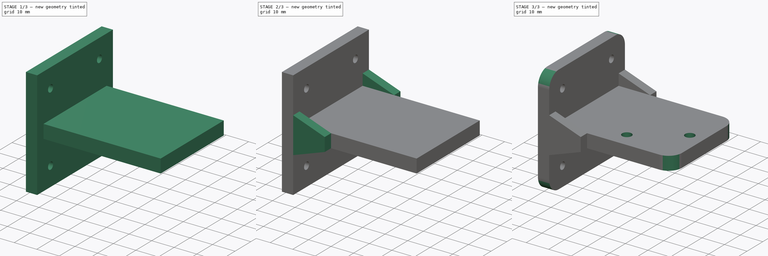
[diagram: build sequence overview — one tinted view per stage of 3, left to right]
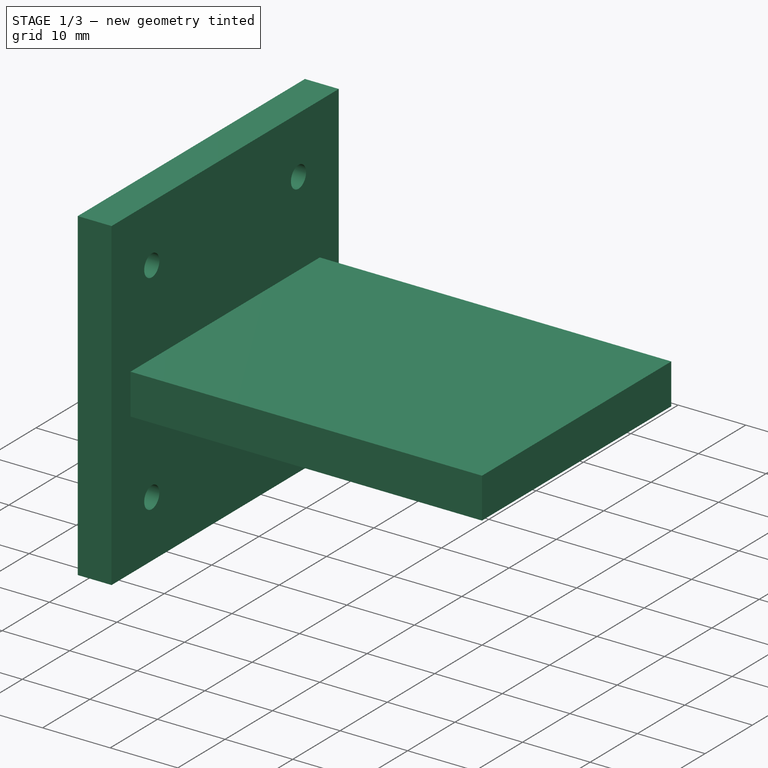
[diagram: stage 1 of 3 — iso view after this stage's code; geometry added in this stage tinted green]
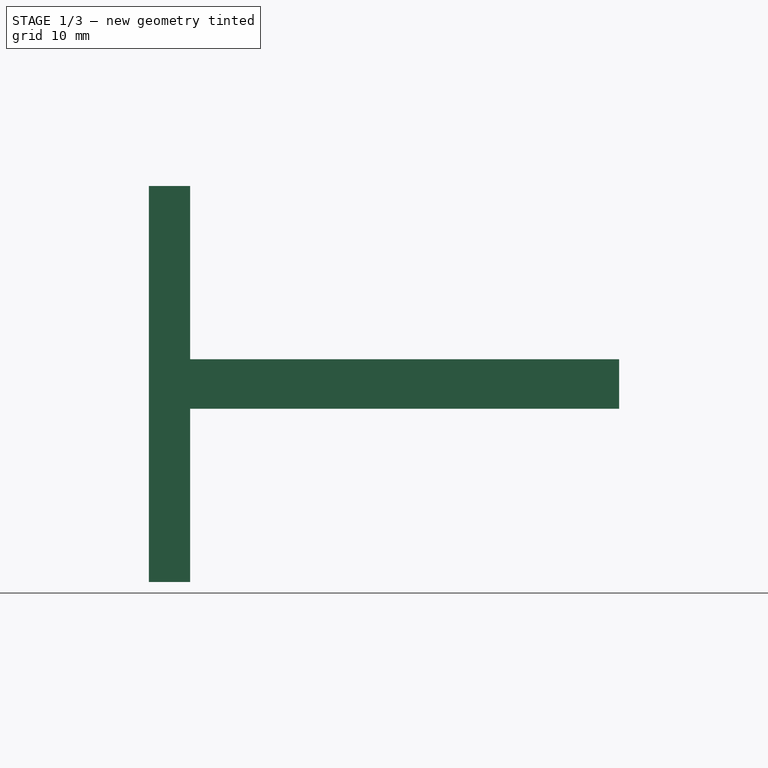
[diagram: stage 1 of 3 — front view after this stage's code; geometry added in this stage tinted green]
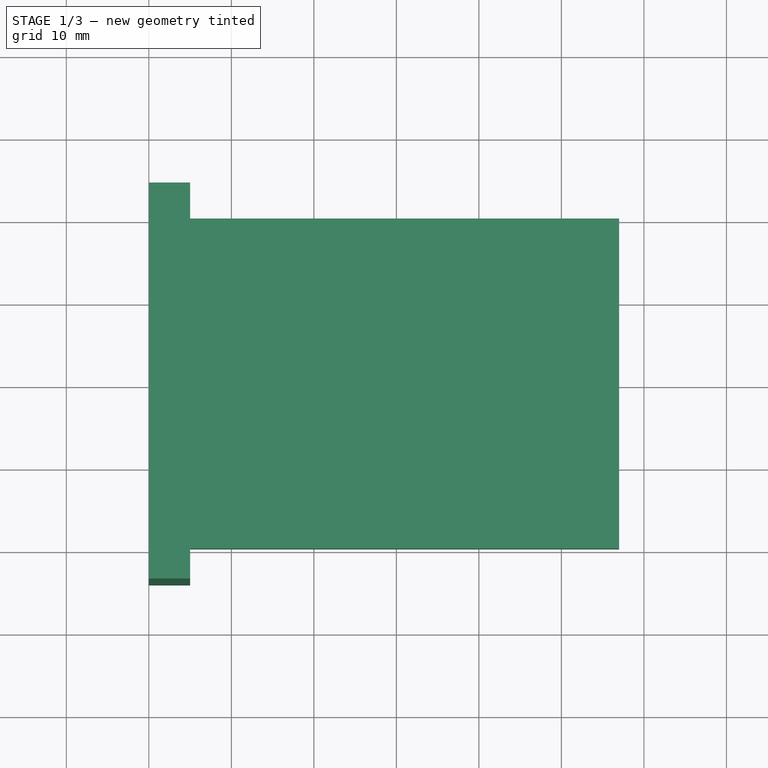
[diagram: stage 1 of 3 — top view after this stage's code; geometry added in this stage tinted green]
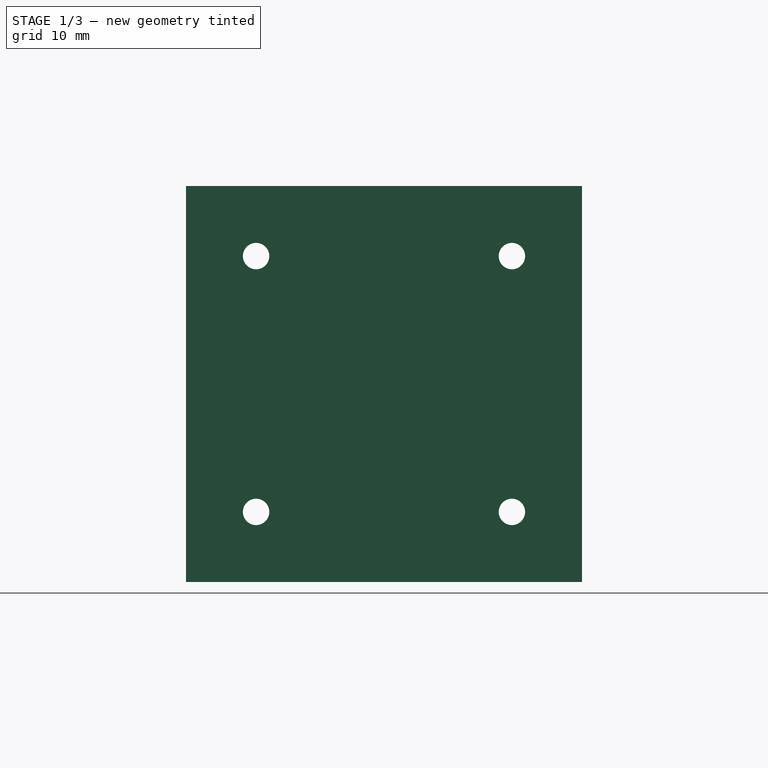
[diagram: stage 1 of 3 — right view after this stage's code; geometry added in this stage tinted green]
FCSTD DOCUMENT  (FreeCAD 0.20R29177 (Git))
Label: PCB_holder
License: All rights reserved
LicenseURL: http://en.wikipedia.org/wiki/All_rights_reserved
objects: Sketcher::SketchObject×5, PartDesign::Pad×4, PartDesign::Plane×2, PartDesign::Pocket×1, PartDesign::Fillet×1, PartDesign::Body×1
note: 20 computed .brp shape members not serialized (recipe doc carries the construction recipe); baked Part::Feature solids carry a one-line shape summary decoded from their .brp

FEATURE [Sketcher::SketchObject] Sketch
  FullyConstrained = true
  MapMode = 5
  Placement = pos=(0,0,0) rot=(0.57735,0.57735,0.57735;2.0944rad)
  Support = -> [YZ_Plane]
  sketch-geometry (8):
    g0: LineSegment StartX=-24 StartY=24 StartZ=0 EndX=24 EndY=24 EndZ=0
    g1: LineSegment StartX=24 StartY=24 StartZ=0 EndX=24 EndY=-24 EndZ=0
    g2: LineSegment StartX=24 StartY=-24 StartZ=0 EndX=-24 EndY=-24 EndZ=0
    g3: LineSegment StartX=-24 StartY=-24 StartZ=0 EndX=-24 EndY=24 EndZ=0
    g4: Circle CenterX=-15.5 CenterY=15.5 CenterZ=0 NormalX=0 NormalY=0 NormalZ=1 AngleXU=0 Radius=1.6
    g5: Circle CenterX=-15.5 CenterY=-15.5 CenterZ=0 NormalX=0 NormalY=0 NormalZ=1 AngleXU=0 Radius=1.6
    g6: Circle CenterX=15.5 CenterY=-15.5 CenterZ=0 NormalX=0 NormalY=0 NormalZ=1 AngleXU=0 Radius=1.6
    g7: Circle CenterX=15.5 CenterY=15.5 CenterZ=0 NormalX=0 NormalY=0 NormalZ=1 AngleXU=0 Radius=1.6
  constraints (24):
    c: Coincident(g0,g1)
    c: Coincident(g1,g2)
    c: Coincident(g2,g3)
    c: Coincident(g3,g0)
    c: Horizontal(g0)
    c: Horizontal(g2)
    c: Vertical(g1)
    c: Vertical(g3)
    c: DistanceY(g1,g1) = 48
    c: DistanceX(g2,g2) = 48
    c: Distance(g0,g-2) = 24
    c: Distance(g2,g-1) = 24
    c: Distance(g7,g-2) = 15.5
    c: Distance(g4,g-2) = 15.5
    c: Distance(g4,g-1) = 15.5
    c: Distance(g7,g-1) = 15.5
    c: Distance(g6,g-1) = 15.5
    c: Distance(g6,g-2) = 15.5
    c: Distance(g5,g-1) = 15.5
    c: Distance(g5,g-2) = 15.5
    c: Diameter(g4) = 3.2
    c: Diameter(g7) = 3.2
    c: Diameter(g6) = 3.2
    c: Diameter(g5) = 3.2
FEATURE [PartDesign::Pad] Pad
  Direction = (1,-2e-16,3e-16)
  Length = 5
  Length2 = 10
  Placement = pos=(0,0,0) rot=(0.57735,0.57735,0.57735;2.0944rad)
  Profile = -> Sketch
  ReferenceAxis = -> Sketch [N_Axis]
  Type = 0
FEATURE [Sketcher::SketchObject] Sketch001
  FullyConstrained = false
  MapMode = 5
  Placement = pos=(5,-2.2e-15,1.7e-15) rot=(0.57735,0.57735,0.57735;2.0944rad)
  Support = -> [Pad]
  sketch-geometry (4):
    g0: LineSegment StartX=-20 StartY=3 StartZ=0 EndX=20 EndY=3 EndZ=0
    g1: LineSegment StartX=20 StartY=3 StartZ=0 EndX=20 EndY=-3 EndZ=0
    g2: LineSegment StartX=20 StartY=-3 StartZ=0 EndX=-20 EndY=-3 EndZ=0
    g3: LineSegment StartX=-20 StartY=-3 StartZ=0 EndX=-20 EndY=3 EndZ=0
  constraints (8):
    c: Coincident(g0,g1)
    c: Coincident(g1,g2)
    c: Coincident(g2,g3)
    c: Coincident(g3,g0)
    c: Horizontal(g0)
    c: Horizontal(g2)
    c: Vertical(g1)
    c: Vertical(g3)
FEATURE [PartDesign::Pad] Pad001
  BaseFeature = -> Pad
  Direction = (1,-4e-16,4e-16)
  Length = 52
  Length2 = 10
  Placement = pos=(0,0,0) rot=(0.57735,0.57735,0.57735;2.0944rad)
  Profile = -> Sketch001
  ReferenceAxis = -> Sketch001 [N_Axis]
  Type = 0
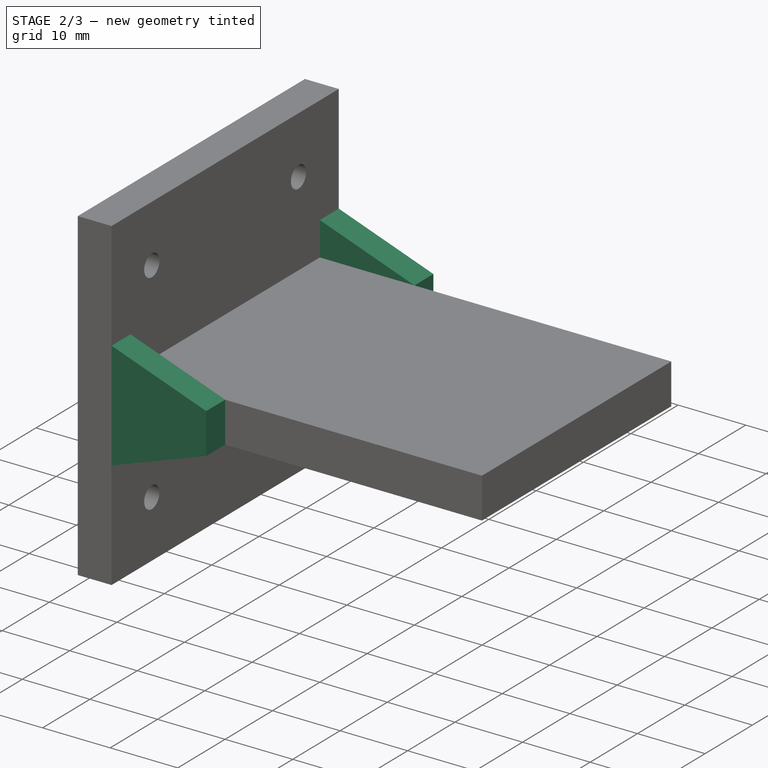
[diagram: stage 2 of 3 — iso view after this stage's code; geometry added in this stage tinted green]
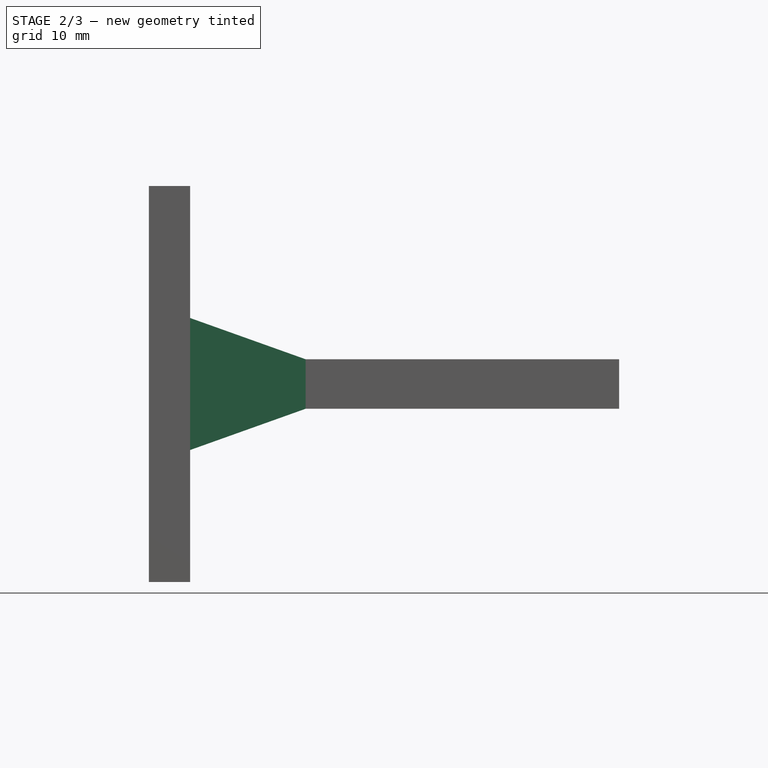
[diagram: stage 2 of 3 — front view after this stage's code; geometry added in this stage tinted green]
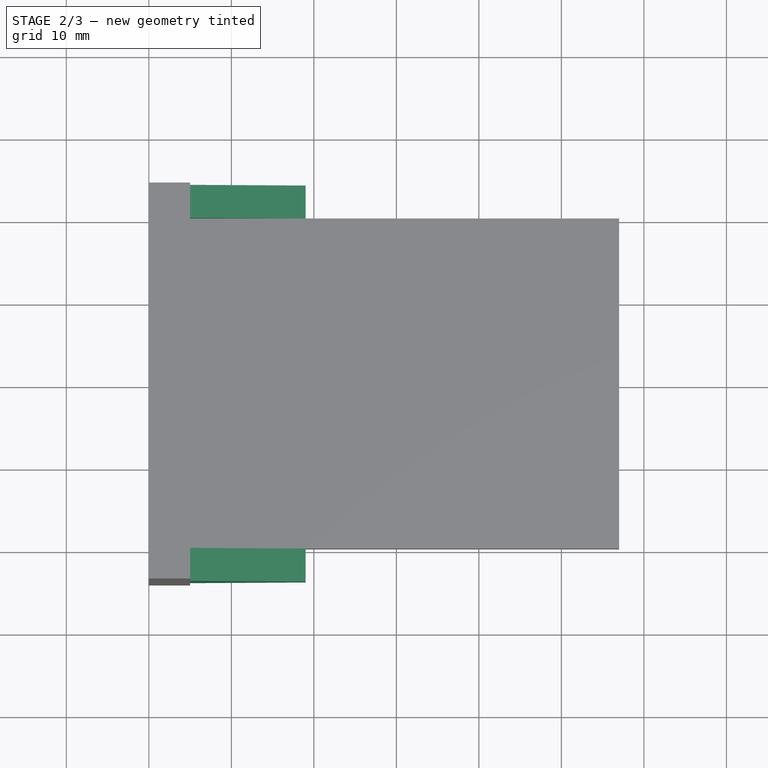
[diagram: stage 2 of 3 — top view after this stage's code; geometry added in this stage tinted green]
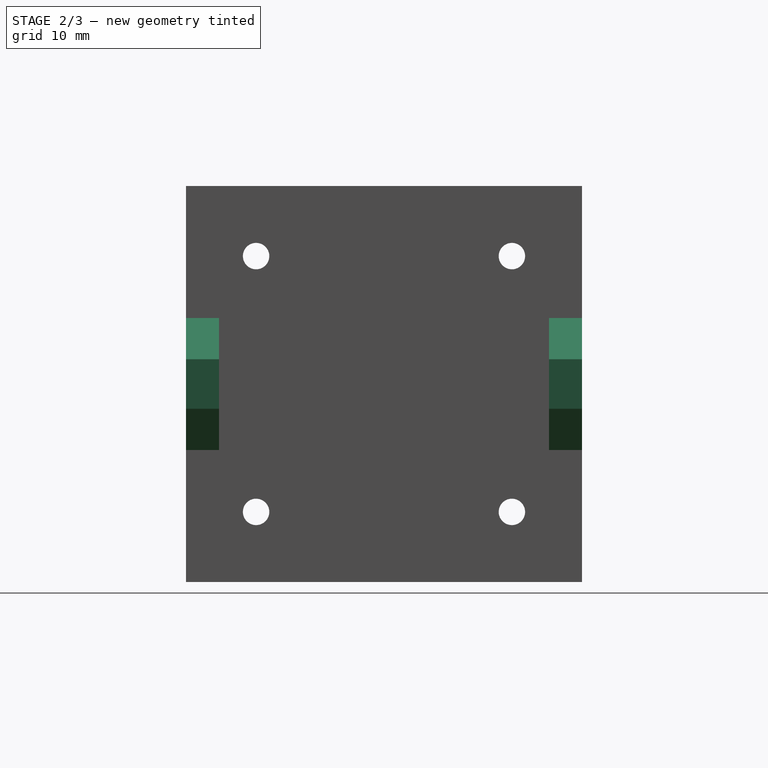
[diagram: stage 2 of 3 — right view after this stage's code; geometry added in this stage tinted green]
FEATURE [PartDesign::Plane] DatumPlane
  Length = 62.8062
  MapMode = 5
  Placement = pos=(-1.07e-14,-24,1.6e-14) rot=(0.57735,0.57735,-0.57735;2.0944rad)
  ResizeMode = 0
  Support = -> [Pad001]
  Width = 94.8062
FEATURE [Sketcher::SketchObject] Sketch002
  FullyConstrained = false
  MapMode = 5
  Placement = pos=(-1.07e-14,-24,1.6e-14) rot=(-0.57735,-0.57735,0.57735;4.18879rad)
  Support = -> [DatumPlane]
  sketch-geometry (4):
    g0: LineSegment StartX=-8 StartY=5 StartZ=0 EndX=8 EndY=5 EndZ=0
    g1: LineSegment StartX=-3 StartY=19 StartZ=0 EndX=3 EndY=19 EndZ=0
    g2: LineSegment StartX=-8 StartY=5 StartZ=0 EndX=-3 EndY=19 EndZ=0
    g3: LineSegment StartX=8 StartY=5 StartZ=0 EndX=3 EndY=19 EndZ=0
  constraints (9):
    c: Horizontal(g0)
    c: Horizontal(g1)
    c: Coincident(g2,g0)
    c: Coincident(g2,g1)
    c: Coincident(g3,g0)
    c: Coincident(g3,g1)
    c: DistanceX(g0,g0) = 16
    c: DistanceX(g1,g1) = 6
    c: Distance(g1,g-1) = 19
FEATURE [PartDesign::Pad] Pad002
  BaseFeature = -> Pad001
  Direction = (-9e-16,-1,4e-16)
  Length = 4
  Length2 = 10
  Placement = pos=(0,0,0) rot=(0.57735,0.57735,0.57735;2.0944rad)
  Profile = -> Sketch002
  ReferenceAxis = -> Sketch002 [N_Axis]
  Reversed = true
  Type = 0
FEATURE [PartDesign::Plane] DatumPlane001
  Length = 62.8062
  MapMode = 5
  Placement = pos=(1.07e-14,24,-2.4e-14) rot=(0.57735,0.57735,0.57735;4.18879rad)
  ResizeMode = 0
  Support = -> [Pad002]
  Width = 94.8062
FEATURE [Sketcher::SketchObject] Sketch003
  FullyConstrained = false
  MapMode = 5
  Placement = pos=(1.07e-14,24,-2.4e-14) rot=(0.57735,0.57735,0.57735;4.18879rad)
  Support = -> [DatumPlane001]
  sketch-geometry (4):
    g0: LineSegment StartX=-8 StartY=5 StartZ=0 EndX=8 EndY=5 EndZ=0
    g1: LineSegment StartX=-3 StartY=19 StartZ=0 EndX=3 EndY=19 EndZ=0
    g2: LineSegment StartX=-3 StartY=19 StartZ=0 EndX=-8 EndY=5 EndZ=0
    g3: LineSegment StartX=8 StartY=5 StartZ=0 EndX=3 EndY=19 EndZ=0
  constraints (6):
    c: Horizontal(g0)
    c: Horizontal(g1)
    c: Coincident(g2,g1)
    c: Coincident(g2,g0)
    c: Coincident(g3,g0)
    c: Coincident(g3,g1)
FEATURE [PartDesign::Pad] Pad003
  BaseFeature = -> Pad002
  Direction = (5e-16,1,-9e-16)
  Length = 4
  Length2 = 10
  Placement = pos=(0,0,0) rot=(0.57735,0.57735,0.57735;2.0944rad)
  Profile = -> Sketch003
  ReferenceAxis = -> Sketch003 [N_Axis]
  Reversed = true
  Type = 0
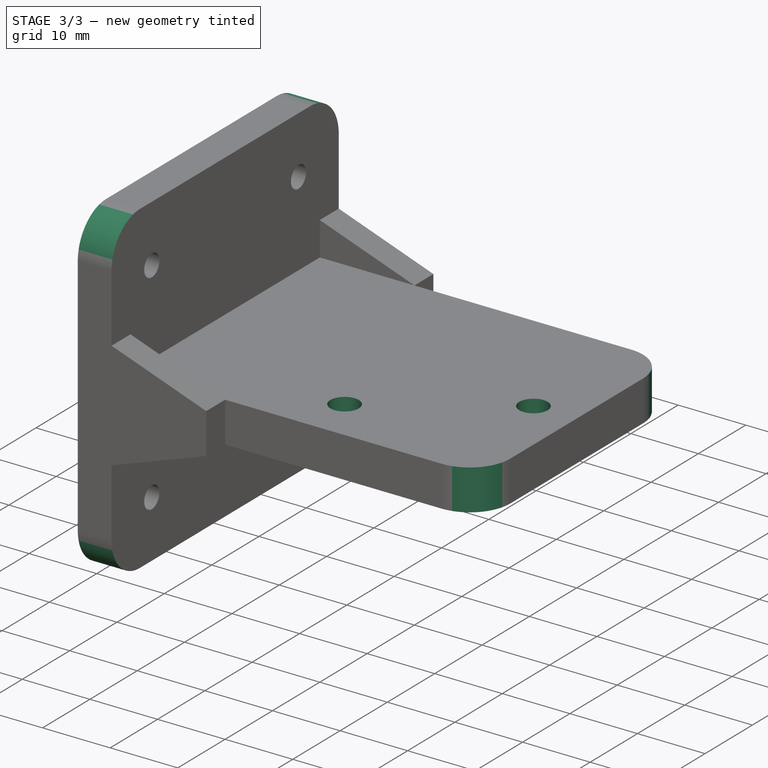
[diagram: stage 3 of 3 — iso view after this stage's code; geometry added in this stage tinted green]
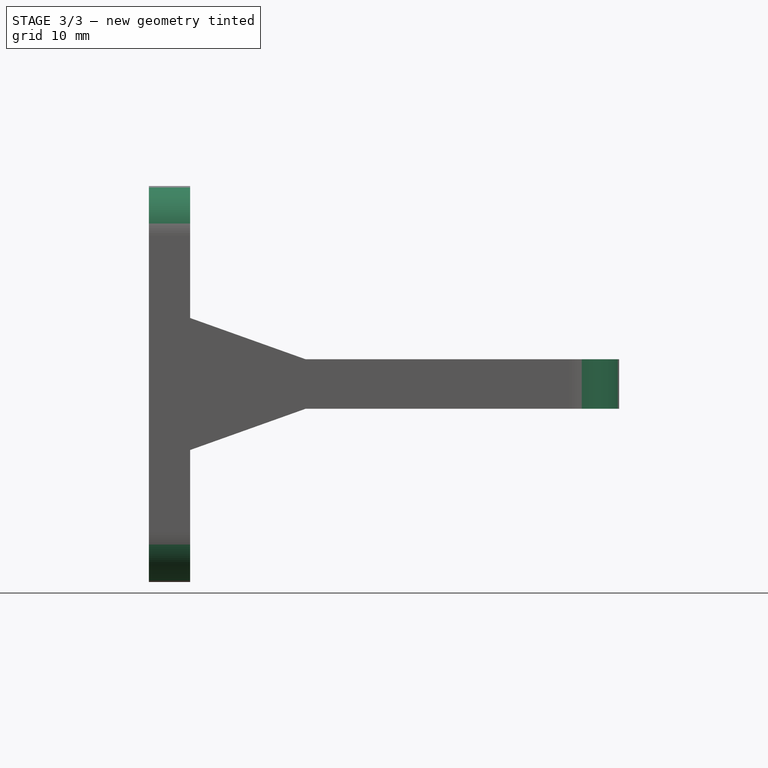
[diagram: stage 3 of 3 — front view after this stage's code; geometry added in this stage tinted green]
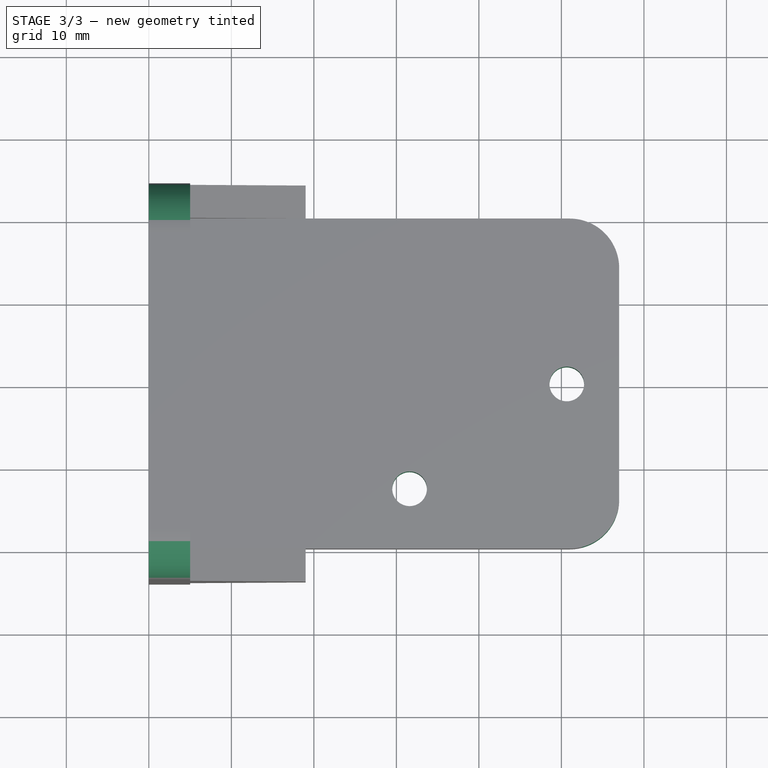
[diagram: stage 3 of 3 — top view after this stage's code; geometry added in this stage tinted green]
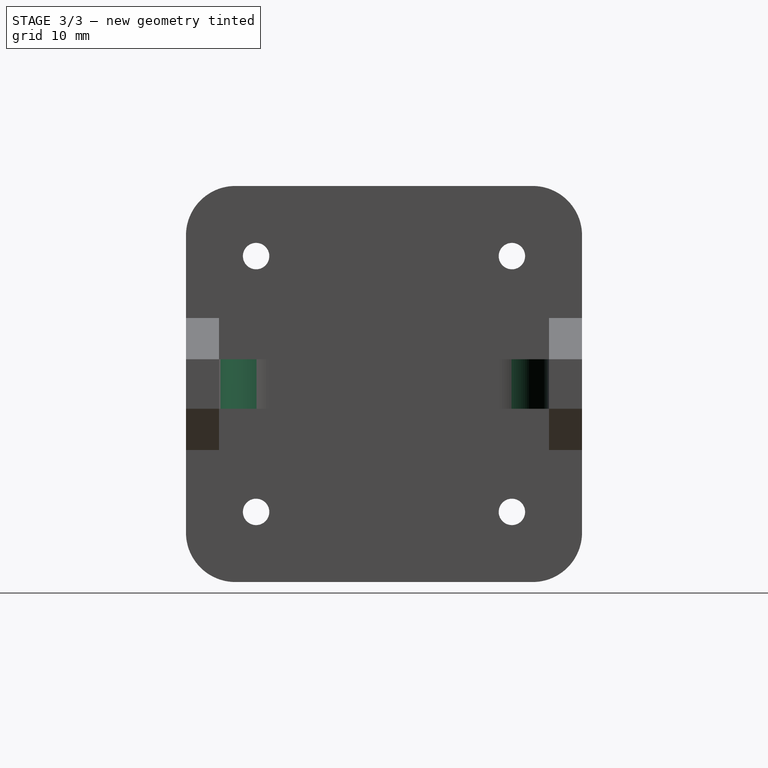
[diagram: stage 3 of 3 — right view after this stage's code; geometry added in this stage tinted green]
FEATURE [Sketcher::SketchObject] Sketch004
  FullyConstrained = true
  MapMode = 5
  Placement = pos=(-3.7e-15,1.7e-15,3) rot=(0,0,-1;1.5708rad)
  Support = -> [Pad003]
  sketch-geometry (6):
    g0: LineSegment StartX=-19 StartY=57 StartZ=0 EndX=19.1 EndY=57 EndZ=0
    g1: LineSegment StartX=19.1 StartY=57 StartZ=0 EndX=19.1 EndY=6.2 EndZ=0
    g2: LineSegment StartX=19.1 StartY=6.2 StartZ=0 EndX=-19 EndY=6.2 EndZ=0
    g3: LineSegment StartX=-19 StartY=6.2 StartZ=0 EndX=-19 EndY=57 EndZ=0
    g4: Circle CenterX=0.05 CenterY=50.65 CenterZ=0 NormalX=0 NormalY=0 NormalZ=1 AngleXU=0 Radius=2.1
    g5: Circle CenterX=12.75 CenterY=31.6 CenterZ=0 NormalX=0 NormalY=0 NormalZ=1 AngleXU=0 Radius=2.1
  constraints (17):
    c: Coincident(g0,g1)
    c: Coincident(g1,g2)
    c: Coincident(g2,g3)
    c: Coincident(g3,g0)
    c: Horizontal(g0)
    c: Horizontal(g2)
    c: Vertical(g1)
    c: Vertical(g3)
    c: DistanceX(g0,g0) = 38.1
    c: DistanceY(g1,g1) = 50.8
    c: Block(g3)
    c: Distance(g4,g3) = 19.05
    c: Distance(g4,g0) = 6.35
    c: Distance(g5,g2) = 25.4
    c: Distance(g5,g1) = 6.35
    c: Diameter(g4) = 4.2
    c: Diameter(g5) = 4.2
FEATURE [PartDesign::Pocket] Pocket
  BaseFeature = -> Pad003
  Direction = (1.2e-15,-6e-16,-1)
  Length = 8
  Length2 = 5
  Placement = pos=(0,0,0) rot=(0.57735,0.57735,0.57735;2.0944rad)
  Profile = -> Sketch004
  ReferenceAxis = -> Sketch004 [N_Axis]
  Type = 0
FEATURE [PartDesign::Fillet] Fillet
  Base = -> Pocket [Edge1,Edge69,Edge70,Edge5,Edge10,Edge2]
  BaseFeature = -> Pocket
  Placement = pos=(0,0,0) rot=(0.57735,0.57735,0.57735;2.0944rad)
  Radius = 6
  SupportTransform = false
  UseAllEdges = false
FEATURE [PartDesign::Body] Body
  Group = -> [Sketch,Pad,Sketch001,Pad001,DatumPlane,Sketch002,Pad002,DatumPlane001,Sketch003,Pad003,Sketch004,Pocket,Fillet]
  Origin = -> Origin
  Tip = -> Fillet
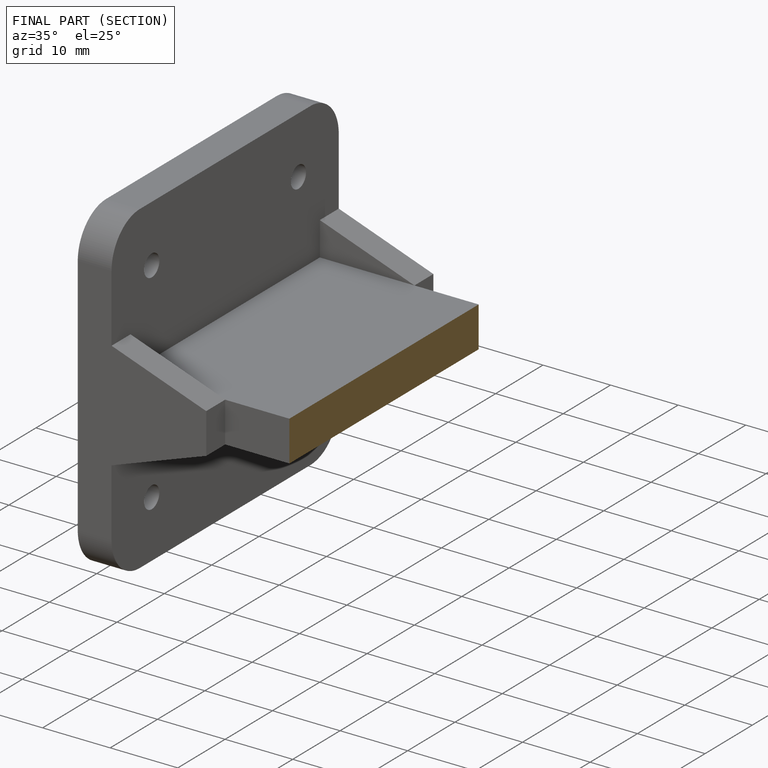
[diagram: finished part — half-section view (interior)]
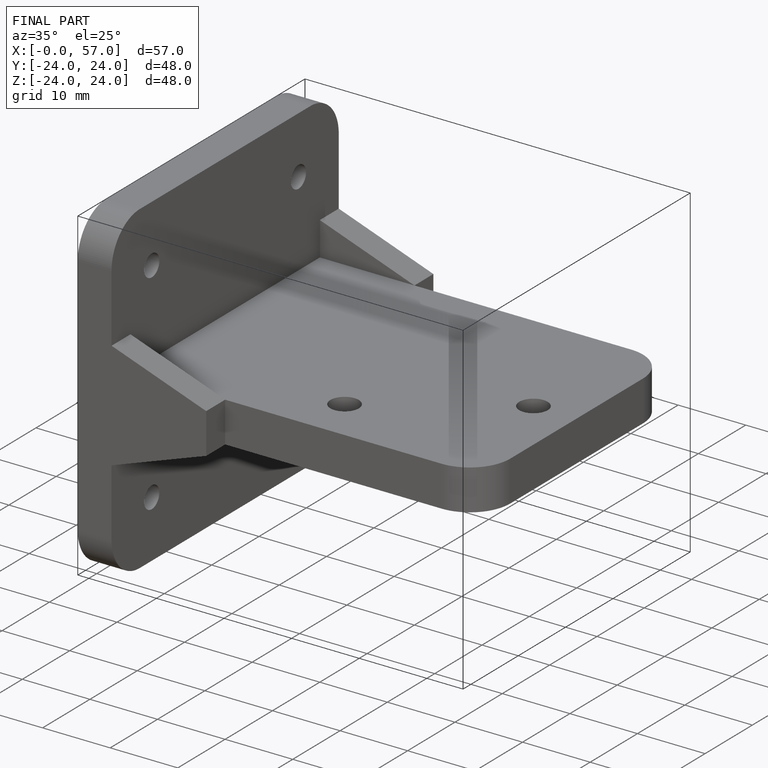
[diagram: finished part — iso view with bounding-box wireframe]
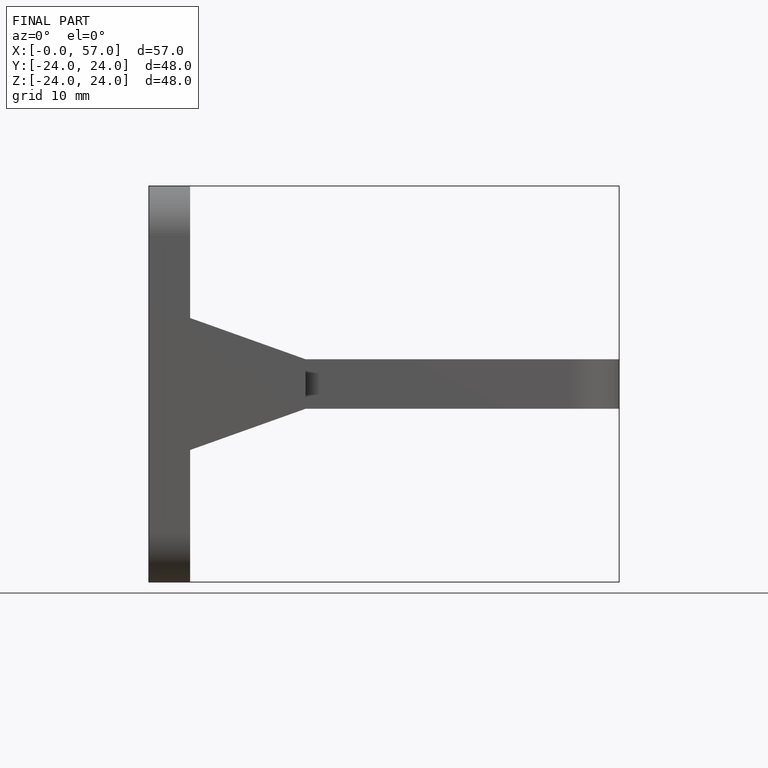
[diagram: finished part — front view with bounding-box wireframe]
